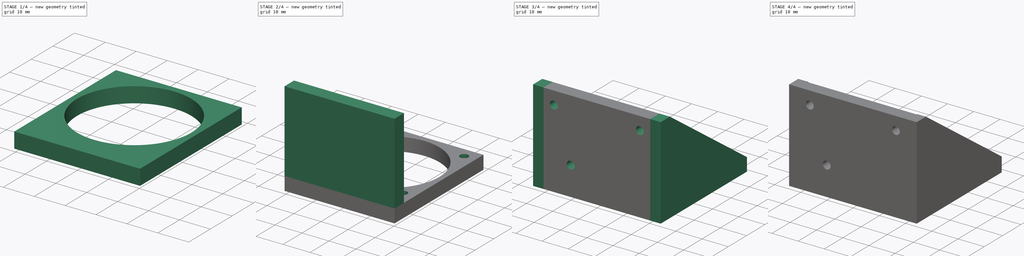
[diagram: build sequence overview — one tinted view per stage of 4, left to right]
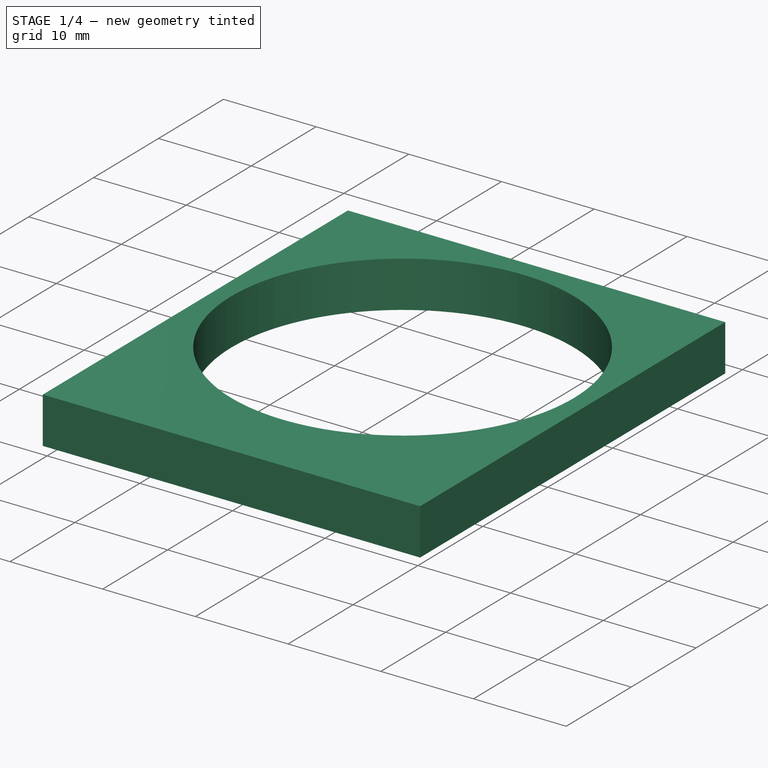
[diagram: stage 1 of 4 — iso view after this stage's code; geometry added in this stage tinted green]
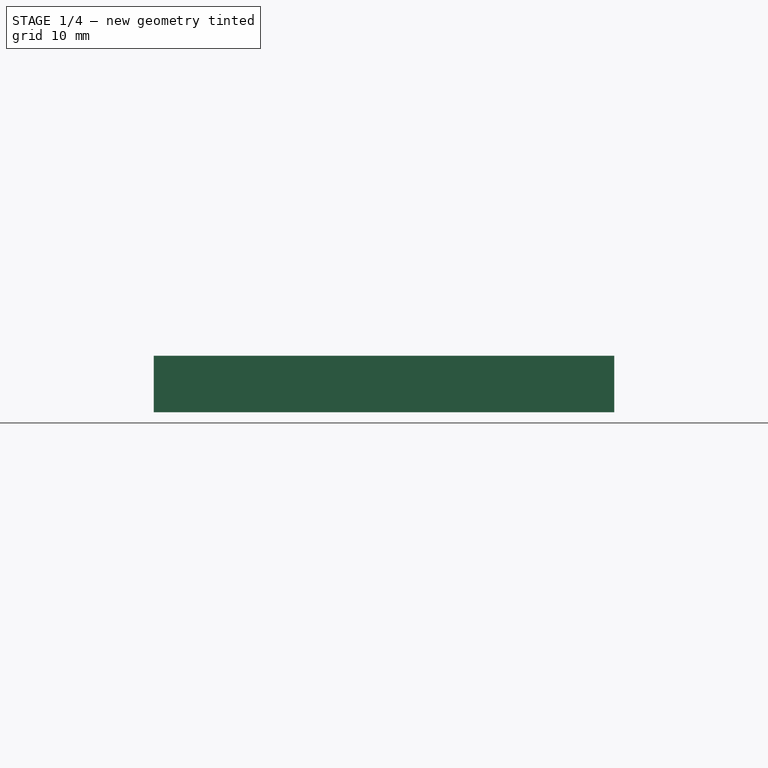
[diagram: stage 1 of 4 — front view after this stage's code; geometry added in this stage tinted green]
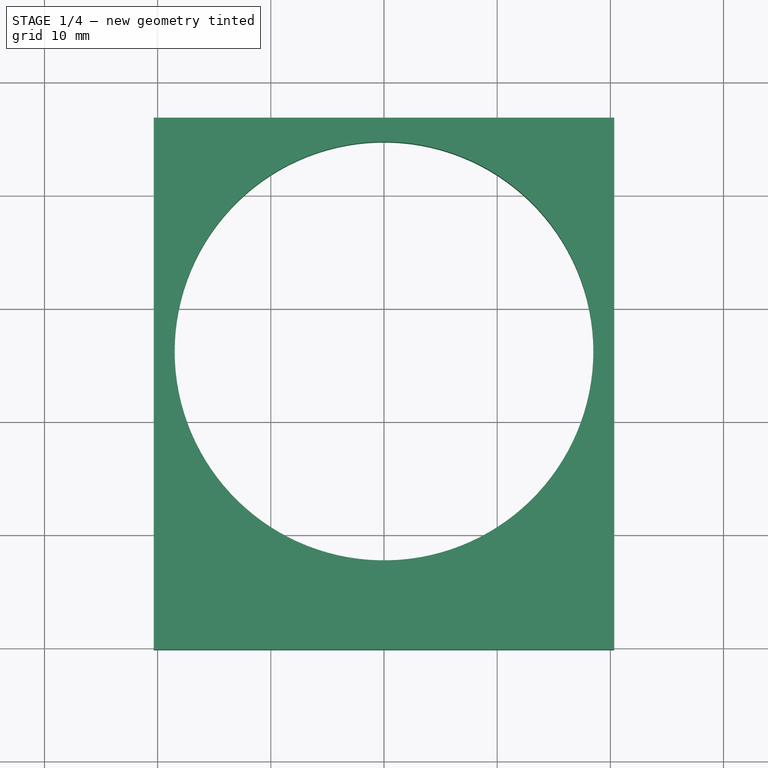
[diagram: stage 1 of 4 — top view after this stage's code; geometry added in this stage tinted green]
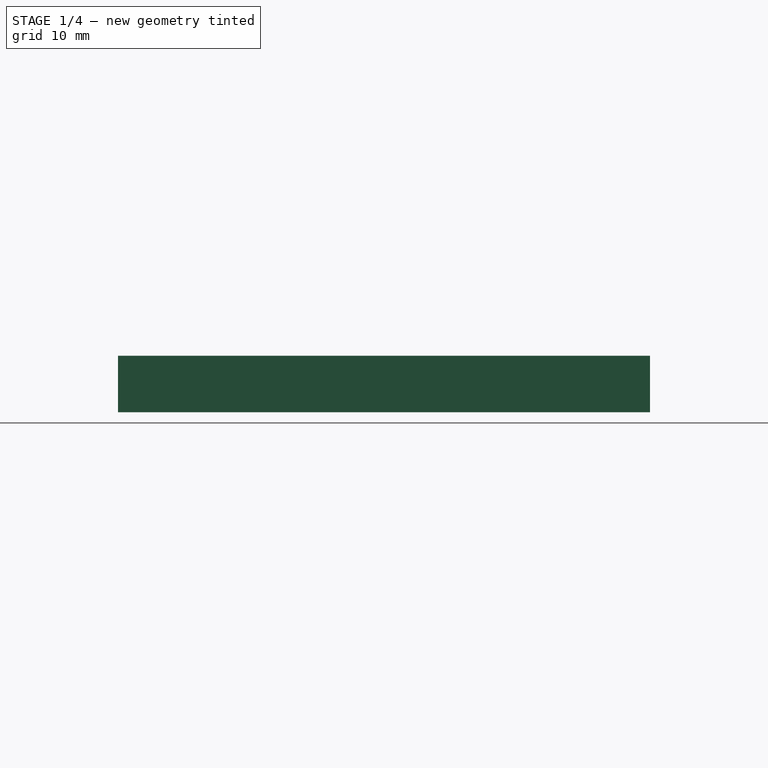
[diagram: stage 1 of 4 — right view after this stage's code; geometry added in this stage tinted green]
FCSTD DOCUMENT  (FreeCAD 0.16R6703 (Git))
Label: Suporte Prusa Graber
License: FreeArt
LicenseURL: http://artlibre.org/licence/lal
objects: Sketcher::SketchObject×8, PartDesign::Pad×4, PartDesign::Pocket×4, PartDesign::Fillet×1
note: 25 computed .brp shape members not serialized (recipe doc carries the construction recipe); baked Part::Feature solids carry a one-line shape summary decoded from their .brp

FEATURE [Sketcher::SketchObject] Sketch
  sketch-geometry (4):
    g0: LineSegment StartX=-20.35 StartY=26.8414 StartZ=0 EndX=20.35 EndY=26.8414 EndZ=0
    g1: LineSegment StartX=20.35 StartY=26.8414 StartZ=0 EndX=20.35 EndY=-20.1586 EndZ=0
    g2: LineSegment StartX=20.35 StartY=-20.1586 StartZ=0 EndX=-20.35 EndY=-20.1586 EndZ=0
    g3: LineSegment StartX=-20.35 StartY=-20.1586 StartZ=0 EndX=-20.35 EndY=26.8414 EndZ=0
  constraints (12):
    c: Coincident(g0,g1)
    c: Coincident(g1,g2)
    c: Coincident(g2,g3)
    c: Coincident(g3,g0)
    c: Horizontal(g2)
    c: Vertical(g1)
    c: Vertical(g3)
    c: Equal(g1,g3)
    c: Equal(g0,g2)
    c: Symmetric(g0,g0,g-2)
    c: DistanceX(g0,g0) = 40.7
    c: DistanceY(g1,g1) = 47
FEATURE [PartDesign::Pad] Pad
  Length = 5
  Length2 = 100
  Sketch = -> Sketch
  Type = 0
FEATURE [Sketcher::SketchObject] Sketch001
  Placement = pos=(0,0,5) rot=(0,0,1;0rad)
  Support = -> Pad [Face6]
  sketch-geometry (3):
    g0: Circle CenterX=0 CenterY=6.2129 CenterZ=0 NormalX=0 NormalY=0 NormalZ=1 Radius=18.5
    g1: LineSegment [constr] StartX=-2.58475 StartY=26.7129 StartZ=0 EndX=2.9431 EndY=26.7129 EndZ=0
    g2: GeomPoint [constr] X=0 Y=24.7129 Z=0
  constraints (7):
    c: PointOnObject(g0,g-2)
    c: Radius(g0) = 18.5
    c: Horizontal(g1)
    c: Distance(g-1,g1) = 26.7129
    c: PointOnObject(g2,g-2)
    c: Distance(g2,g1) = 2
    c: PointOnObject(g2,g0)
FEATURE [PartDesign::Pocket] Pocket
  Length = 5
  Sketch = -> Sketch001
  Type = 1
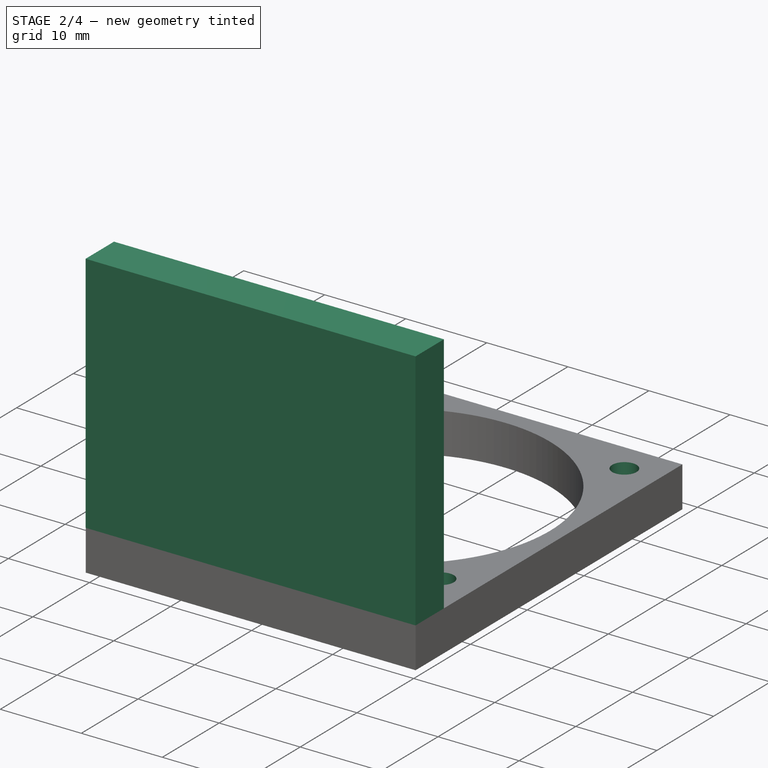
[diagram: stage 2 of 4 — iso view after this stage's code; geometry added in this stage tinted green]
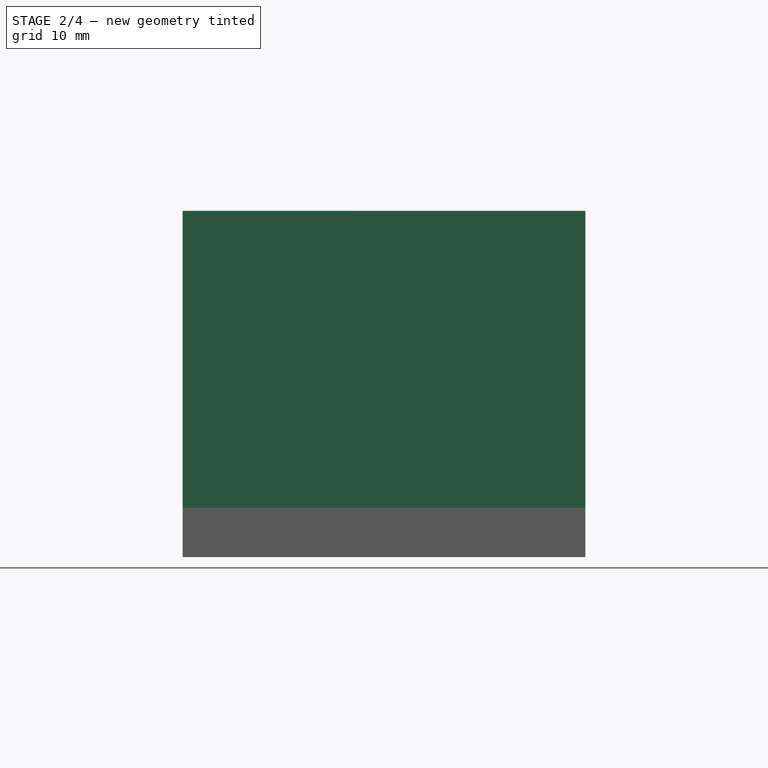
[diagram: stage 2 of 4 — front view after this stage's code; geometry added in this stage tinted green]
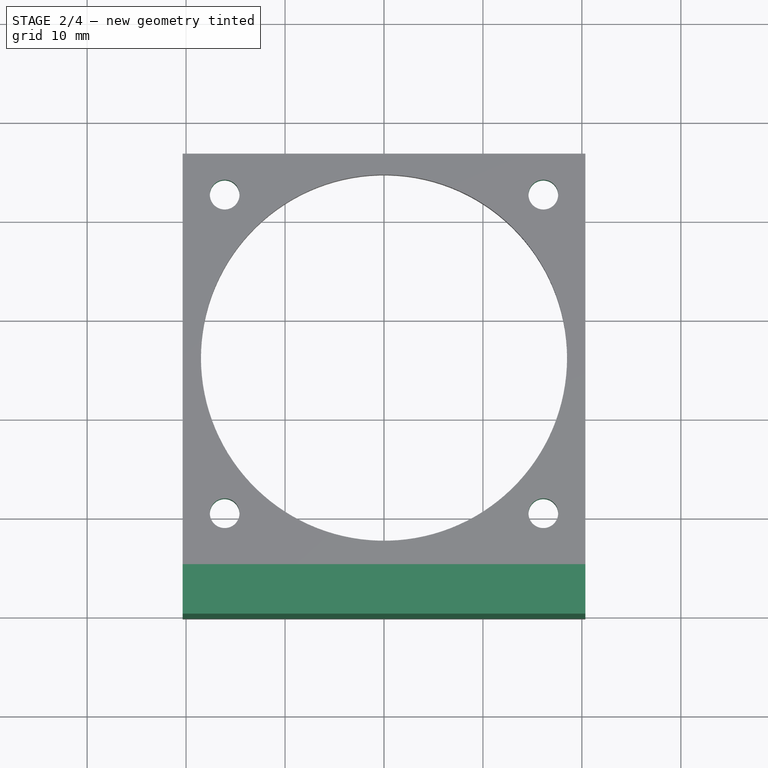
[diagram: stage 2 of 4 — top view after this stage's code; geometry added in this stage tinted green]
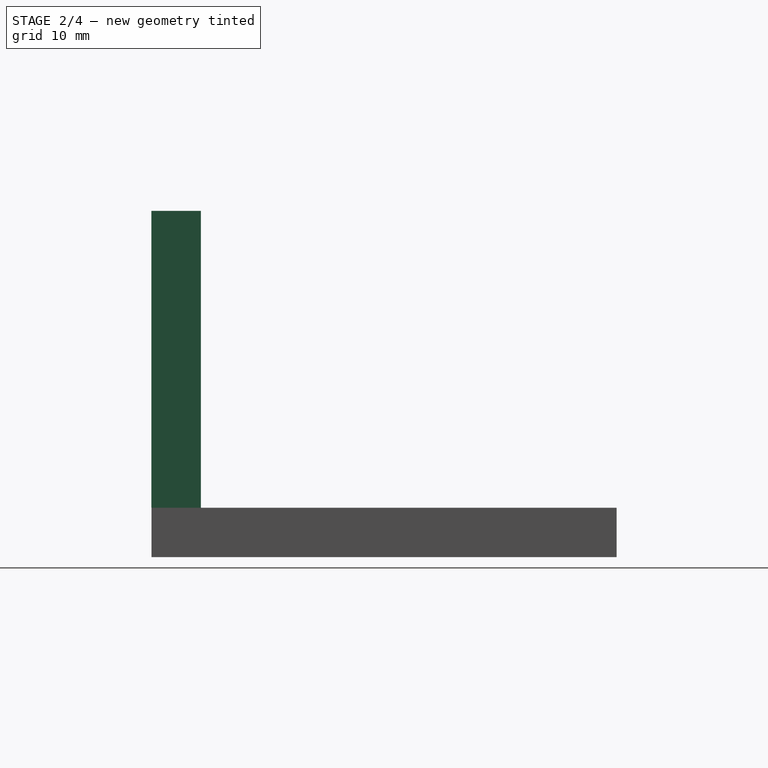
[diagram: stage 2 of 4 — right view after this stage's code; geometry added in this stage tinted green]
FEATURE [Sketcher::SketchObject] Sketch002
  Placement = pos=(0,0,5) rot=(0,0,1;0rad)
  Support = -> Pocket [Face5]
  sketch-geometry (9):
    g0: LineSegment [constr] StartX=-16.1 StartY=22.6911 StartZ=0 EndX=16.1 EndY=22.6911 EndZ=0
    g1: LineSegment [constr] StartX=16.1 StartY=22.6911 StartZ=0 EndX=16.1 EndY=-9.5089 EndZ=0
    g2: LineSegment [constr] StartX=16.1 StartY=-9.5089 StartZ=0 EndX=-16.1 EndY=-9.5089 EndZ=0
    g3: LineSegment [constr] StartX=-16.1 StartY=-9.5089 StartZ=0 EndX=-16.1 EndY=22.6911 EndZ=0
    g4: Circle CenterX=-16.1 CenterY=22.6911 CenterZ=0 NormalX=0 NormalY=0 NormalZ=1 Radius=1.5
    g5: Circle CenterX=16.1 CenterY=22.6911 CenterZ=0 NormalX=0 NormalY=0 NormalZ=1 Radius=1.5
    g6: Circle CenterX=16.1 CenterY=-9.5089 CenterZ=0 NormalX=0 NormalY=0 NormalZ=1 Radius=1.5
    g7: Circle CenterX=-16.1 CenterY=-9.5089 CenterZ=0 NormalX=0 NormalY=0 NormalZ=1 Radius=1.5
    g8: LineSegment [constr] StartX=-20.1501 StartY=26.6911 StartZ=0 EndX=-13.3613 EndY=26.6911 EndZ=0
  constraints (22):
    c: Coincident(g0,g1)
    c: Coincident(g1,g2)
    c: Coincident(g2,g3)
    c: Coincident(g3,g0)
    c: Horizontal(g0)
    c: Horizontal(g2)
    c: Vertical(g1)
    c: Vertical(g3)
    c: DistanceX(g0,g0) = 32.2
    c: DistanceY(g1,g1) = 32.2
    c: Symmetric(g0,g0,g-2)
    c: Coincident(g4,g0)
    c: Coincident(g5,g0)
    c: Coincident(g6,g1)
    c: Radius(g4) = 1.5
    c: Radius(g5) = 1.5
    c: Radius(g6) = 1.5
    c: Coincident(g2,g7)
    c: Radius(g7) = 1.5
    c: Horizontal(g8)
    c: Distance(g-1,g8) = 26.6911
    c: Distance(g0,g8) = 4
FEATURE [PartDesign::Pocket] Pocket001
  Length = 5
  Sketch = -> Sketch002
  Type = 1
FEATURE [Sketcher::SketchObject] Sketch003
  Placement = pos=(0,0,5) rot=(0,0,1;0rad)
  Support = -> Pocket001 [Face5]
  sketch-geometry (4):
    g0: LineSegment StartX=-20.35 StartY=-15.1742 StartZ=0 EndX=20.35 EndY=-15.1742 EndZ=0
    g1: LineSegment StartX=20.35 StartY=-15.1742 StartZ=0 EndX=20.35 EndY=-20.1742 EndZ=0
    g2: LineSegment StartX=20.35 StartY=-20.1742 StartZ=0 EndX=-20.35 EndY=-20.1742 EndZ=0
    g3: LineSegment StartX=-20.35 StartY=-20.1742 StartZ=0 EndX=-20.35 EndY=-15.1742 EndZ=0
  constraints (11):
    c: Coincident(g0,g1)
    c: Coincident(g1,g2)
    c: Coincident(g2,g3)
    c: Coincident(g3,g0)
    c: Horizontal(g0)
    c: Horizontal(g2)
    c: Vertical(g1)
    c: Vertical(g3)
    c: DistanceY(g1,g1) = 5
    c: DistanceX(g0,g0) = 40.7
    c: Symmetric(g0,g0,g-2)
FEATURE [PartDesign::Pad] Pad001
  Length = 30
  Length2 = 100
  Sketch = -> Sketch003
  Type = 0
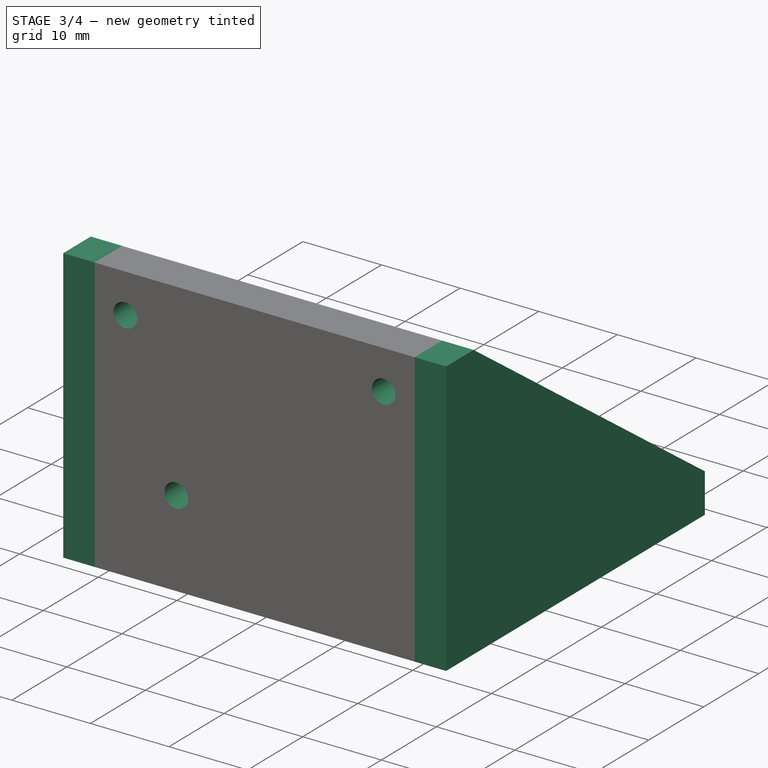
[diagram: stage 3 of 4 — iso view after this stage's code; geometry added in this stage tinted green]
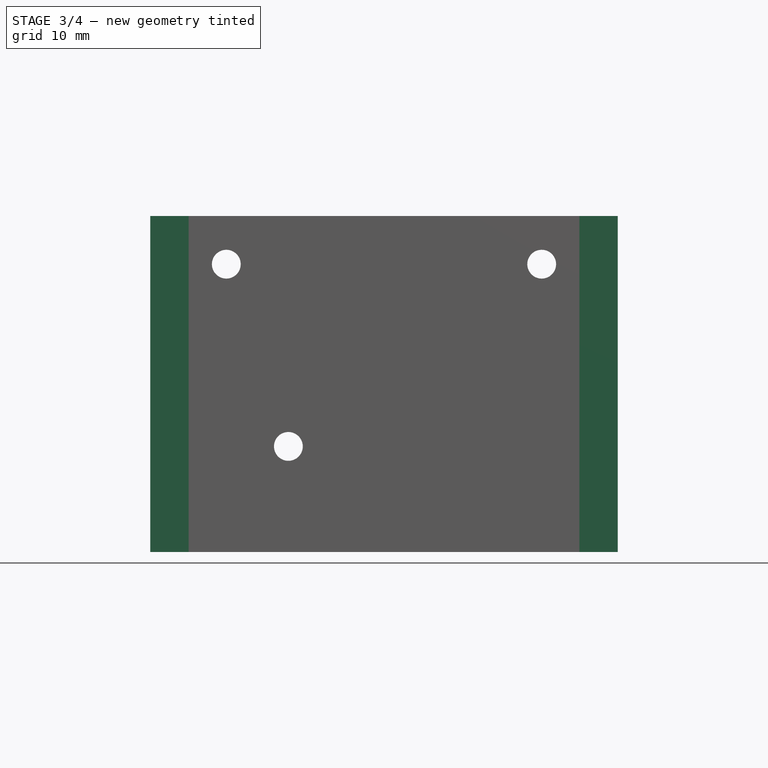
[diagram: stage 3 of 4 — front view after this stage's code; geometry added in this stage tinted green]
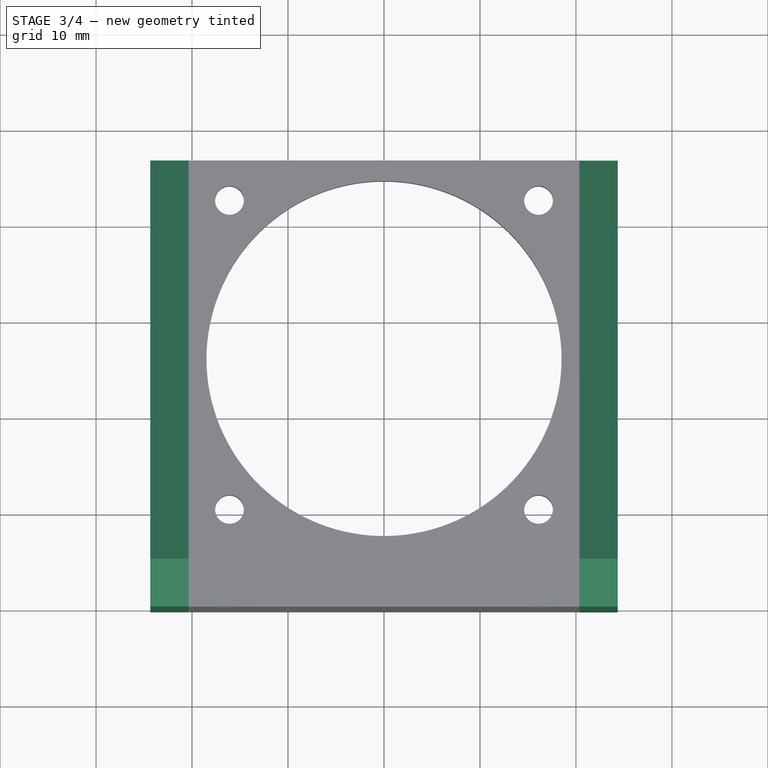
[diagram: stage 3 of 4 — top view after this stage's code; geometry added in this stage tinted green]
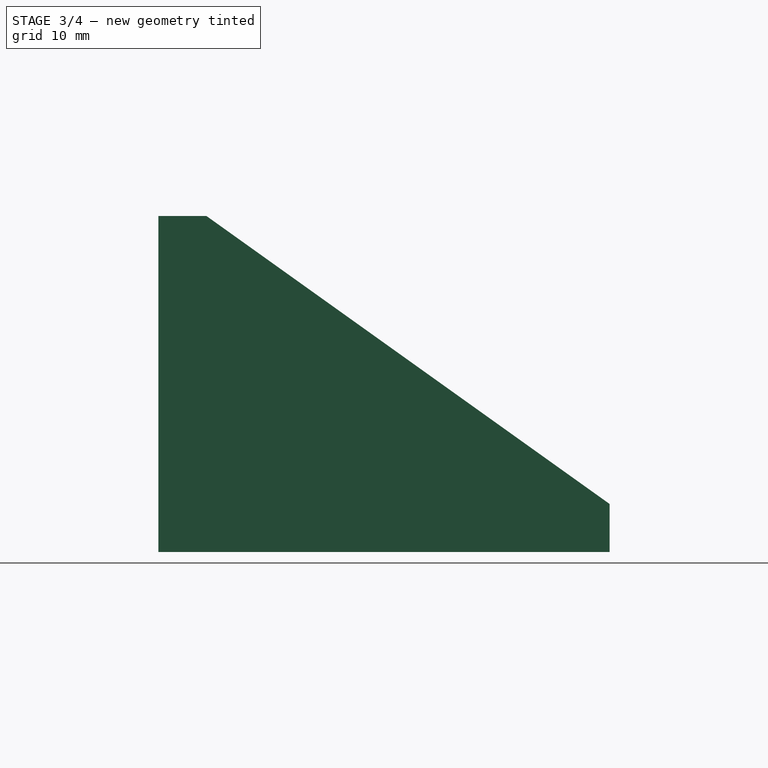
[diagram: stage 3 of 4 — right view after this stage's code; geometry added in this stage tinted green]
FEATURE [Sketcher::SketchObject] Sketch004
  Placement = pos=(0,-15.1742,0) rot=(0,0.707107,0.707107;3.14159rad)
  Support = -> Pad001 [Face10]
  sketch-geometry (5):
    g0: Circle CenterX=9.96311 CenterY=10.9975 CenterZ=0 NormalX=0 NormalY=0 NormalZ=1 Radius=1.5
    g1: LineSegment StartX=20.3221 StartY=14.9983 StartZ=0 EndX=20.3221 EndY=9.36683 EndZ=0
    g2: Circle CenterX=-16.4299 CenterY=29.9825 CenterZ=0 NormalX=0 NormalY=0 NormalZ=1 Radius=1.5
    g3: LineSegment [constr] StartX=-16.4299 StartY=29.9825 StartZ=0 EndX=16.4299 EndY=29.9825 EndZ=0
    g4: Circle CenterX=16.4299 CenterY=29.9825 CenterZ=0 NormalX=0 NormalY=0 NormalZ=1 Radius=1.5
  constraints (10):
    c: Radius(g0) = 1.5
    c: Vertical(g1)
    c: Distance(g-1,g1) = 20.3221
    c: Coincident(g3,g2)
    c: Horizontal(g3)
    c: Distance(g-1,g3) = 29.9825
    c: Symmetric(g2,g3,g-2)
    c: Radius(g2) = 1.5
    c: Coincident(g4,g3)
    c: Radius(g4) = 1.5
FEATURE [PartDesign::Pocket] Pocket002
  Length = 5
  Sketch = -> Sketch004
  Type = 0
FEATURE [Sketcher::SketchObject] Sketch005
  Placement = pos=(20.35,0,0) rot=(0.57735,0.57735,0.57735;2.0944rad)
  Support = -> Pocket002 [Face3]
  sketch-geometry (5):
    g0: LineSegment StartX=-20.1666 StartY=0 StartZ=0 EndX=26.8334 EndY=0 EndZ=0
    g1: LineSegment StartX=26.8334 StartY=0 StartZ=0 EndX=26.8334 EndY=5 EndZ=0
    g2: LineSegment StartX=26.8334 StartY=5 StartZ=0 EndX=-15.1666 EndY=35 EndZ=0
    g3: LineSegment StartX=-15.1666 StartY=35 StartZ=0 EndX=-20.1666 EndY=35 EndZ=0
    g4: LineSegment StartX=-20.1666 StartY=35 StartZ=0 EndX=-20.1666 EndY=0 EndZ=0
  constraints (15):
    c: PointOnObject(g0,g-1)
    c: PointOnObject(g0,g-1)
    c: Coincident(g0,g1)
    c: Vertical(g1)
    c: Coincident(g1,g2)
    c: Coincident(g2,g3)
    c: Horizontal(g3)
    c: Coincident(g3,g4)
    c: Coincident(g4,g0)
    c: Vertical(g4)
    c: DistanceY(g4,g4) = 35
    c: DistanceX(g3,g3) = 5
    c: DistanceX(g0,g0) = 47
    c: DistanceY(g1,g1) = 5
    c: DistanceX(g-2,g0) = -20.1666
FEATURE [PartDesign::Pad] Pad002
  Length = 4
  Length2 = 100
  Sketch = -> Sketch005
  Type = 0
FEATURE [Sketcher::SketchObject] Sketch006
  Placement = pos=(-20.35,0,0) rot=(0.57735,-0.57735,-0.57735;2.0944rad)
  Support = -> Pad002 [Face2]
  sketch-geometry (5):
    g0: LineSegment StartX=-26.8425 StartY=0 StartZ=0 EndX=20.1575 EndY=0 EndZ=0
    g1: LineSegment StartX=20.1575 StartY=0 StartZ=0 EndX=20.1575 EndY=35 EndZ=0
    g2: LineSegment StartX=20.1575 StartY=35 StartZ=0 EndX=15.1575 EndY=35 EndZ=0
    g3: LineSegment StartX=15.1575 StartY=35 StartZ=0 EndX=-26.8425 EndY=5 EndZ=0
    g4: LineSegment StartX=-26.8425 StartY=5 StartZ=0 EndX=-26.8425 EndY=0 EndZ=0
  constraints (15):
    c: PointOnObject(g0,g-1)
    c: Horizontal(g0)
    c: Coincident(g0,g1)
    c: Vertical(g1)
    c: Coincident(g1,g2)
    c: Horizontal(g2)
    c: Coincident(g2,g3)
    c: Coincident(g3,g4)
    c: Coincident(g4,g0)
    c: Vertical(g4)
    c: Equal(g4,g2)
    c: DistanceX(g2,g2) = 5
    c: DistanceX(g0,g0) = 47
    c: DistanceX(g-2,g0) = 20.1575
    c: DistanceY(g1,g1) = 35
FEATURE [PartDesign::Pad] Pad003
  Length = 4
  Length2 = 100
  Sketch = -> Sketch006
  Type = 0
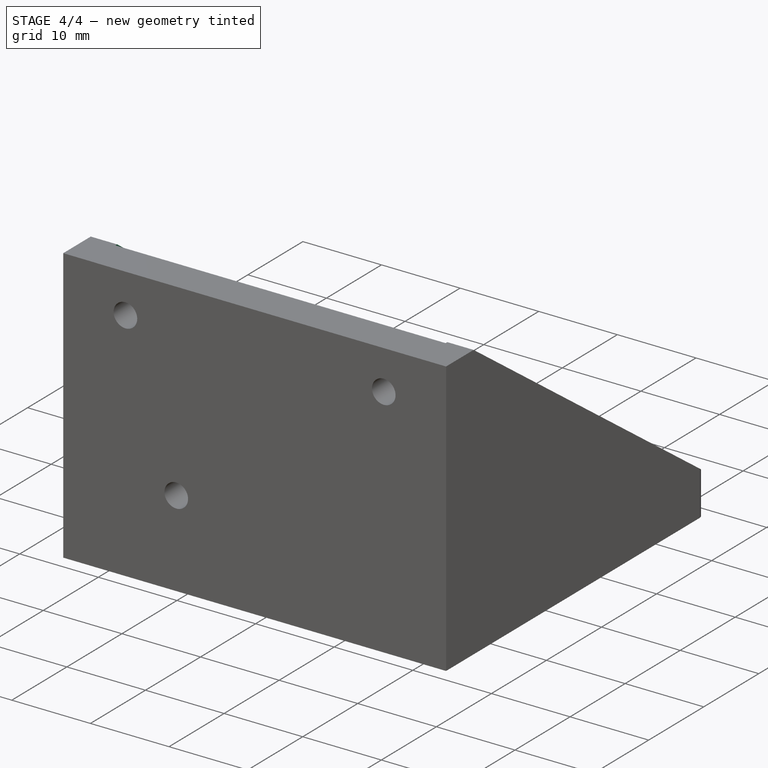
[diagram: stage 4 of 4 — iso view after this stage's code; geometry added in this stage tinted green]
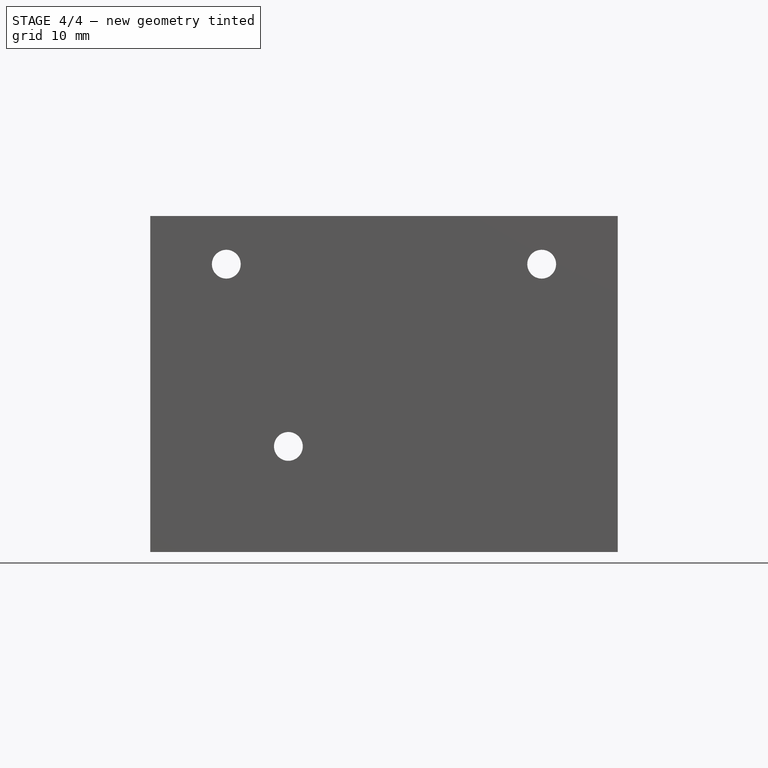
[diagram: stage 4 of 4 — front view after this stage's code; geometry added in this stage tinted green]
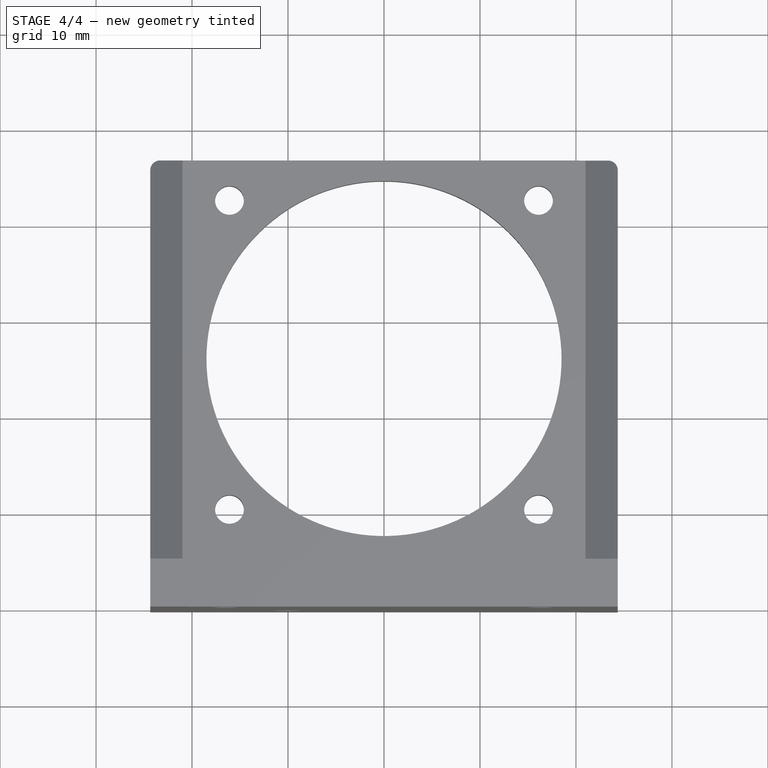
[diagram: stage 4 of 4 — top view after this stage's code; geometry added in this stage tinted green]
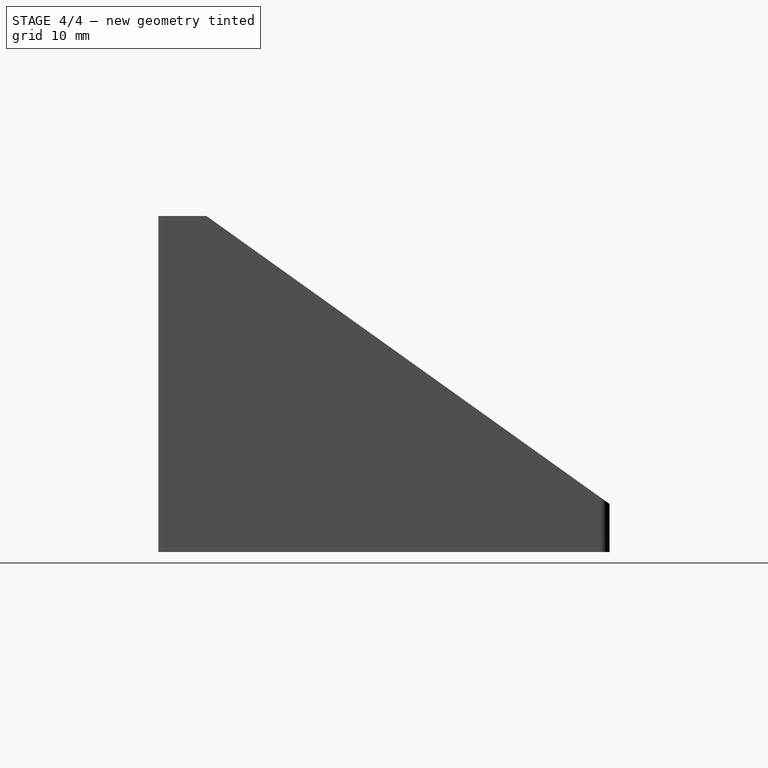
[diagram: stage 4 of 4 — right view after this stage's code; geometry added in this stage tinted green]
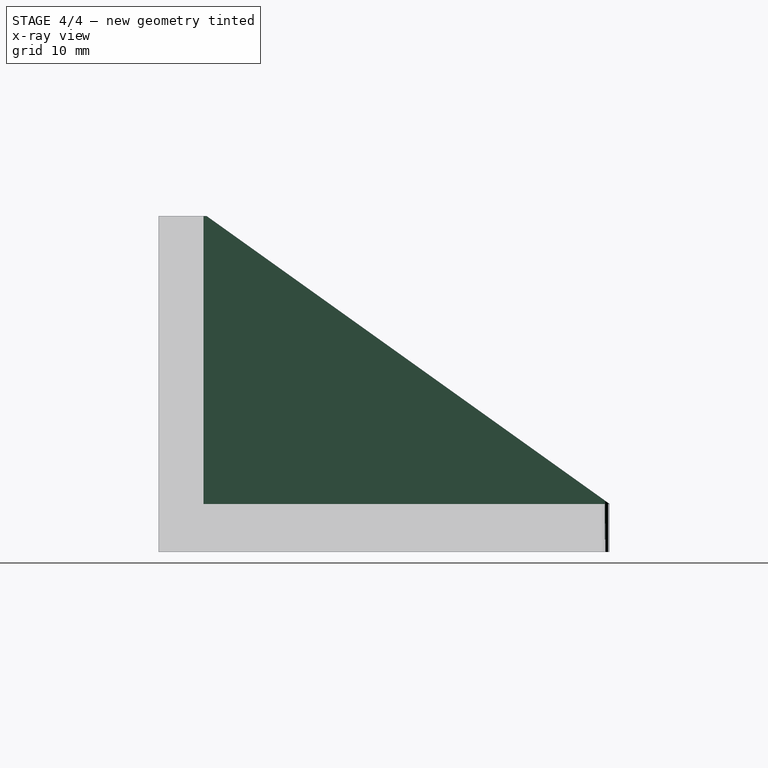
[diagram: stage 4 of 4 — x-ray composite at the right view; earlier geometry ghosted, this stage's added geometry solid]
FEATURE [Sketcher::SketchObject] Sketch007
  Placement = pos=(0,0,5) rot=(0,0,1;0rad)
  Support = -> Pad003 [Face3]
  sketch-geometry (4):
    g0: LineSegment StartX=-21 StartY=28.5644 StartZ=0 EndX=21 EndY=28.5644 EndZ=0
    g1: LineSegment StartX=21 StartY=28.5644 StartZ=0 EndX=21 EndY=-15.4689 EndZ=0
    g2: LineSegment StartX=21 StartY=-15.4689 StartZ=0 EndX=-21 EndY=-15.4689 EndZ=0
    g3: LineSegment StartX=-21 StartY=-15.4689 StartZ=0 EndX=-21 EndY=28.5644 EndZ=0
  constraints (10):
    c: Coincident(g0,g1)
    c: Coincident(g1,g2)
    c: Coincident(g2,g3)
    c: Coincident(g3,g0)
    c: Horizontal(g0)
    c: Horizontal(g2)
    c: Vertical(g1)
    c: Vertical(g3)
    c: Symmetric(g0,g0,g-2)
    c: DistanceX(g0,g0) = 42
FEATURE [PartDesign::Pocket] Pocket003
  Length = 32
  Reversed = true
  Sketch = -> Sketch007
  Type = 0
FEATURE [PartDesign::Fillet] Fillet
  Base = -> Pocket003 [Edge46,Edge23]
  Radius = 1
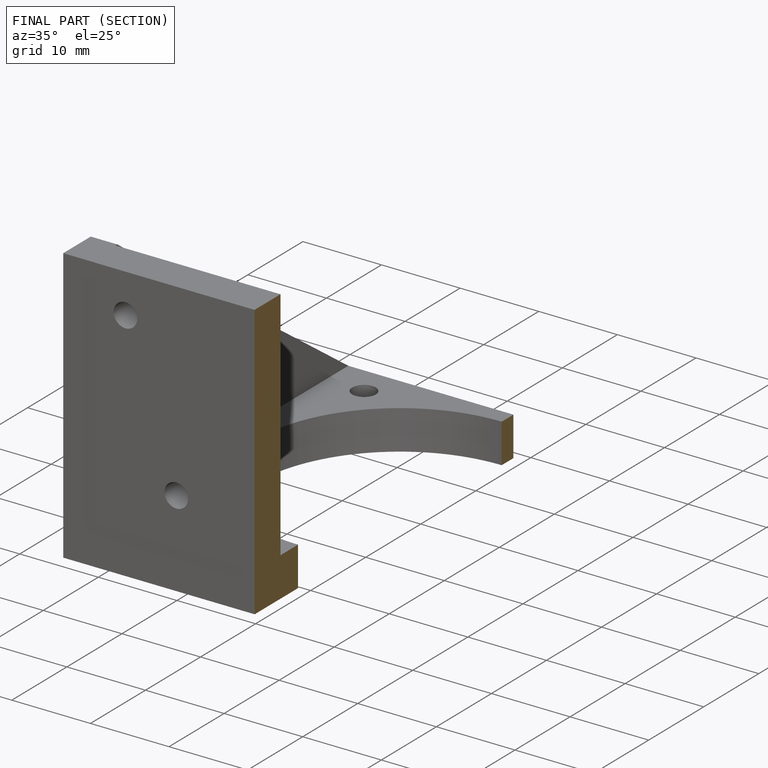
[diagram: finished part — half-section view (interior)]
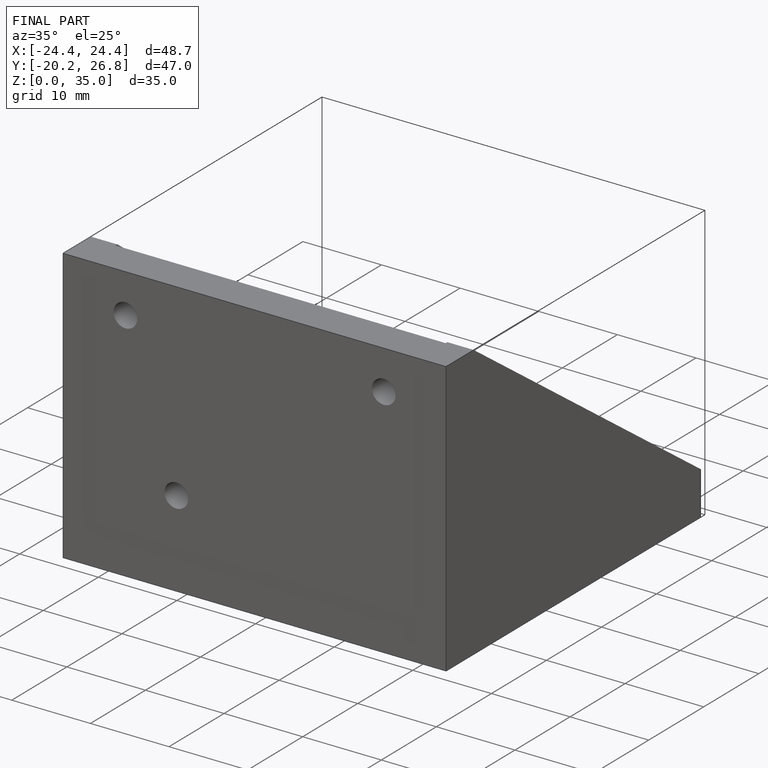
[diagram: finished part — iso view with bounding-box wireframe]
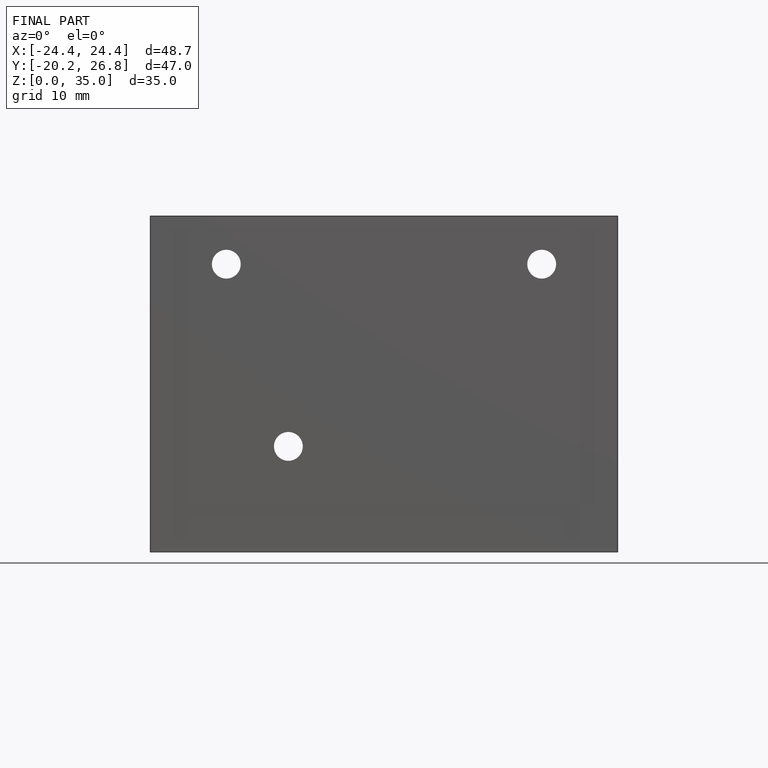
[diagram: finished part — front view with bounding-box wireframe]
